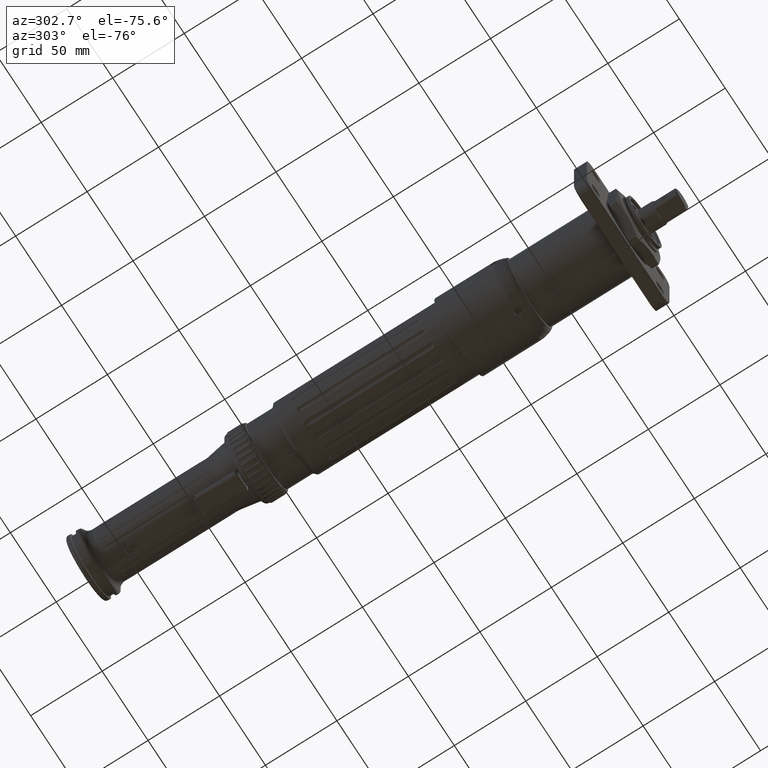
[diagram: clean part render]
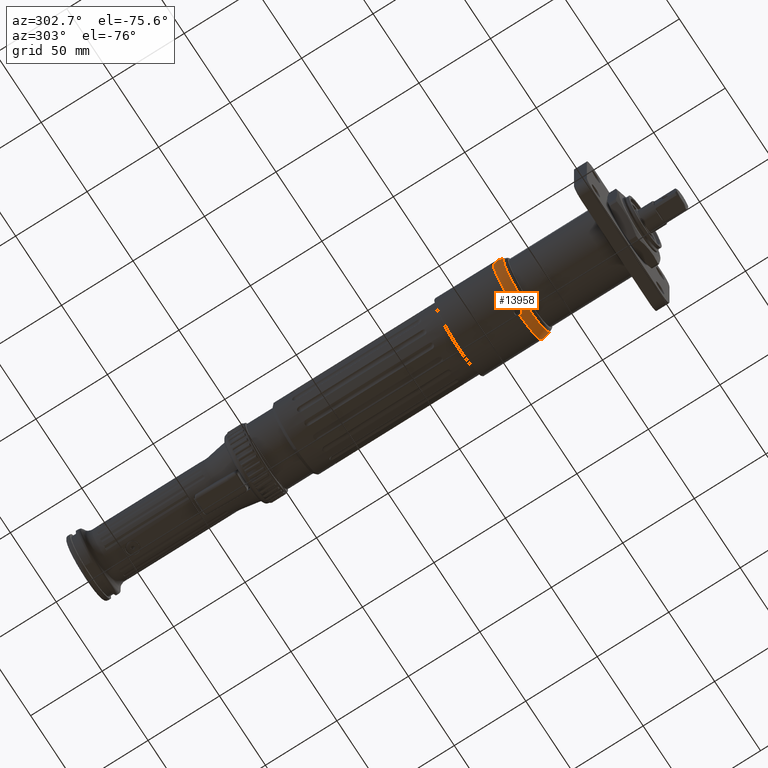
[diagram: same view with one face highlighted and labeled with its STEP entity id]
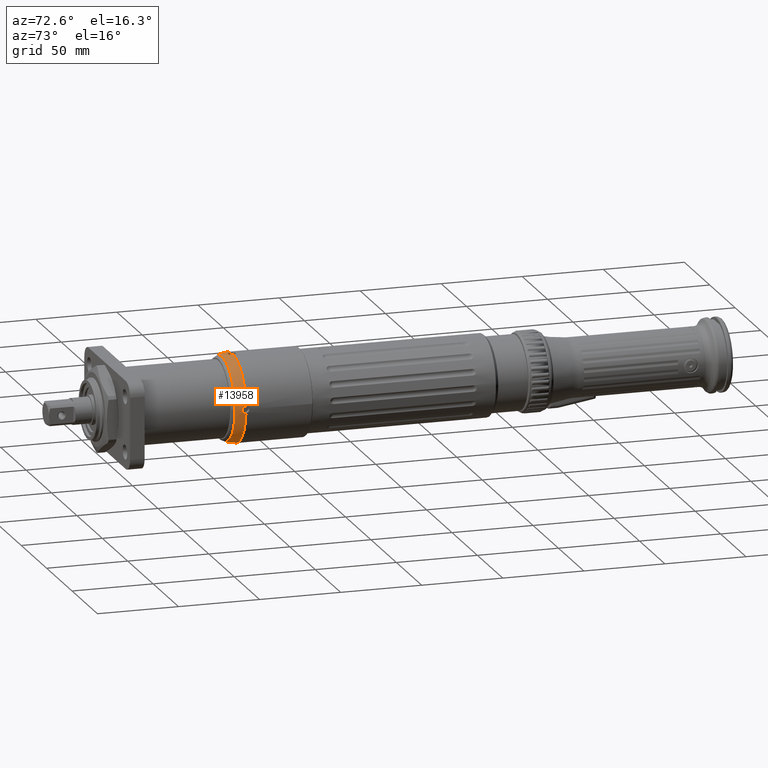
[diagram: same view with one face highlighted and labeled with its STEP entity id]
A machine part, auxiliary view. The second image highlights one B-rep face of the part: STEP entity #13958.
A second angle (auxiliary view) of the same face is appended — the face is thin or edge-on in the first view.
In plain terms, the highlighted face is a freeform B-spline surface patch.
Its self-contained STEP definition (entity closure, byte-faithful):
#13=(
BOUNDED_SURFACE()
B_SPLINE_SURFACE(2,2,((#25899,#25900,#25901,#25902,#25903,#25904,#25905,
#25906,#25907),(#25908,#25909,#25910,#25911,#25912,#25913,#25914,#25915,
#25916),(#25917,#25918,#25919,#25920,#25921,#25922,#25923,#25924,#25925)),
 .UNSPECIFIED.,.F.,.T.,.F.)
B_SPLINE_SURFACE_WITH_KNOTS((3,3),(3,2,2,2,3),(-0.436332312998584,1.12253176373896E-15),
(-3.14159265358979,-1.5707963267949,0.,1.5707963267949,3.14159265358979),
 .UNSPECIFIED.)
GEOMETRIC_REPRESENTATION_ITEM()
RATIONAL_B_SPLINE_SURFACE(((1.,0.707106781186548,1.,0.707106781186548,1.,
0.707106781186548,1.,0.707106781186548,1.),(0.976296007119946,0.690345527079863,
0.976296007119946,0.690345527079863,0.976296007119946,0.690345527079863,
0.976296007119946,0.690345527079863,0.976296007119946),(1.,0.707106781186548,
1.,0.707106781186548,1.,0.707106781186548,1.,0.707106781186548,1.)))
REPRESENTATION_ITEM('')
SURFACE()
);
#1694=(
BOUNDED_CURVE()
B_SPLINE_CURVE(2,(#25927,#25928,#25929),.UNSPECIFIED.,.F.,.F.)
B_SPLINE_CURVE_WITH_KNOTS((3,3),(0.166741521424202,0.436332312998584),
 .UNSPECIFIED.)
CURVE()
GEOMETRIC_REPRESENTATION_ITEM()
RATIONAL_B_SPLINE_CURVE((0.988806508728665,0.98535433197672,1.))
REPRESENTATION_ITEM('')
);
#2829=CIRCLE('',#15746,25.5946168055497);
#2830=CIRCLE('',#15747,25.5946168055497);
#2831=CIRCLE('',#15748,27.);
#2832=CIRCLE('',#15749,27.);
#2833=CIRCLE('',#15750,27.);
#2834=CIRCLE('',#15751,27.);
#4360=FACE_OUTER_BOUND('',#5438,.T.);
#5438=EDGE_LOOP('',(#12202,#12203,#12204,#12205,#12206,#12207,#12208,#12209,
#12210,#12211,#12212,#12213,#12214));
#5519=B_SPLINE_CURVE_WITH_KNOTS('',3,(#22624,#22625,#22626,#22627,#22628,
#22629,#22630,#22631,#22632,#22633,#22634,#22635,#22636,#22637,#22638,#22639,
#22640,#22641,#22642,#22643,#22644,#22645,#22646,#22647),.UNSPECIFIED.,
 .F.,.F.,(4,2,2,2,2,2,2,2,2,2,2,4),(-0.762094773629998,-0.713138349447178,
-0.6632666893365,-0.579993876070031,-0.488369197452834,-0.427920128872396,
-0.380832725063162,-0.333655014169783,-0.272850996636044,-0.181497437758492,
-0.0904148483368831,-3.02151717925526E-6),.UNSPECIFIED.);
#5522=B_SPLINE_CURVE_WITH_KNOTS('',3,(#22674,#22675,#22676,#22677,#22678,
#22679,#22680,#22681,#22682,#22683,#22684,#22685,#22686,#22687,#22688,#22689,
#22690,#22691,#22692,#22693,#22694,#22695,#22696,#22697),.UNSPECIFIED.,
 .F.,.F.,(4,2,2,2,2,2,2,2,2,2,2,4),(-0.762091733407677,-0.713134224124559,
-0.66326451951849,-0.579991737637625,-0.488367033450213,-0.427917917544912,
-0.380830912152885,-0.333653914462036,-0.272851085137253,-0.181497582014372,
-0.0904150257707268,0.),.UNSPECIFIED.);
#5525=B_SPLINE_CURVE_WITH_KNOTS('',3,(#22727,#22728,#22729,#22730,#22731,
#22732,#22733,#22734,#22735,#22736,#22737,#22738,#22739,#22740),
 .UNSPECIFIED.,.F.,.F.,(4,2,2,2,2,2,4),(-0.381180428784287,-0.380832725063223,
-0.333655014169834,-0.272850996636086,-0.181497437758522,-0.0904148483368918,
-3.02151717943682E-6),.UNSPECIFIED.);
#5526=B_SPLINE_CURVE_WITH_KNOTS('',3,(#22741,#22742,#22743,#22744,#22745,
#22746,#22747,#22748,#22749,#22750,#22751,#22752,#22753,#22754),
 .UNSPECIFIED.,.F.,.F.,(4,2,2,2,2,2,4),(-0.762094773630102,-0.713138349447276,
-0.663266689336593,-0.579993876070119,-0.488369197452918,-0.427920128872469,
-0.381180428784287),.UNSPECIFIED.);
#5529=B_SPLINE_CURVE_WITH_KNOTS('',3,(#22781,#22782,#22783,#22784,#22785,
#22786,#22787,#22788,#22789,#22790,#22791,#22792,#22793,#22794,#22795,#22796,
#22797,#22798,#22799,#22800,#22801,#22802,#22803,#22804),.UNSPECIFIED.,
 .F.,.F.,(4,2,2,2,2,2,2,2,2,2,2,4),(-0.762094773630157,-0.713138349447343,
-0.663266689336651,-0.579993876070159,-0.488369197452944,-0.42792012887249,
-0.380832725063245,-0.333655014169856,-0.272850996636103,-0.181497437758526,
-0.0904148483368925,-3.02151717909098E-6),.UNSPECIFIED.);
#6066=VERTEX_POINT('',#22602);
#6067=VERTEX_POINT('',#22613);
#6070=VERTEX_POINT('',#22652);
#6071=VERTEX_POINT('',#22663);
#6075=VERTEX_POINT('',#22704);
#6076=VERTEX_POINT('',#22715);
#6077=VERTEX_POINT('',#22726);
#6080=VERTEX_POINT('',#22759);
#6081=VERTEX_POINT('',#22770);
#6770=VERTEX_POINT('',#25926);
#6771=VERTEX_POINT('',#25930);
#7388=EDGE_CURVE('',#6066,#6067,#5519,.T.);
#7392=EDGE_CURVE('',#6070,#6071,#5522,.T.);
#7397=EDGE_CURVE('',#6077,#6076,#5525,.T.);
#7398=EDGE_CURVE('',#6075,#6077,#5526,.T.);
#7402=EDGE_CURVE('',#6080,#6081,#5529,.T.);
#8586=EDGE_CURVE('',#6077,#6770,#1694,.T.);
#8587=EDGE_CURVE('',#6770,#6771,#2829,.T.);
#8588=EDGE_CURVE('',#6771,#6770,#2830,.T.);
#8589=EDGE_CURVE('',#6076,#6070,#2831,.T.);
#8590=EDGE_CURVE('',#6071,#6080,#2832,.T.);
#8591=EDGE_CURVE('',#6081,#6066,#2833,.T.);
#8592=EDGE_CURVE('',#6067,#6075,#2834,.T.);
#12202=ORIENTED_EDGE('',*,*,#7398,.T.);
#12203=ORIENTED_EDGE('',*,*,#8586,.T.);
#12204=ORIENTED_EDGE('',*,*,#8587,.T.);
#12205=ORIENTED_EDGE('',*,*,#8588,.T.);
#12206=ORIENTED_EDGE('',*,*,#8586,.F.);
#12207=ORIENTED_EDGE('',*,*,#7397,.T.);
#12208=ORIENTED_EDGE('',*,*,#8589,.T.);
#12209=ORIENTED_EDGE('',*,*,#7392,.T.);
#12210=ORIENTED_EDGE('',*,*,#8590,.T.);
#12211=ORIENTED_EDGE('',*,*,#7402,.T.);
#12212=ORIENTED_EDGE('',*,*,#8591,.T.);
#12213=ORIENTED_EDGE('',*,*,#7388,.T.);
#12214=ORIENTED_EDGE('',*,*,#8592,.T.);
#13958=ADVANCED_FACE('',(#4360),#13,.F.);
#15746=AXIS2_PLACEMENT_3D('',#25931,#20033,#20034);
#15747=AXIS2_PLACEMENT_3D('',#25932,#20035,#20036);
#15748=AXIS2_PLACEMENT_3D('',#25933,#20037,#20038);
#15749=AXIS2_PLACEMENT_3D('',#25934,#20039,#20040);
#15750=AXIS2_PLACEMENT_3D('',#25935,#20041,#20042);
#15751=AXIS2_PLACEMENT_3D('',#25936,#20043,#20044);
#20033=DIRECTION('center_axis',(2.4980018054066E-16,1.,-5.39144740531135E-16));
#20034=DIRECTION('ref_axis',(-1.,2.4980018054066E-16,2.91883724430911E-17));
#20035=DIRECTION('center_axis',(2.4980018054066E-16,1.,-5.39144740531135E-16));
#20036=DIRECTION('ref_axis',(-1.,2.4980018054066E-16,2.91883724430911E-17));
#20037=DIRECTION('center_axis',(-2.4980018054066E-16,-1.,5.39144740531135E-16));
#20038=DIRECTION('ref_axis',(-1.,2.4980018054066E-16,-6.26601374929604E-17));
#20039=DIRECTION('center_axis',(-2.4980018054066E-16,-1.,5.39144740531135E-16));
#20040=DIRECTION('ref_axis',(-1.,2.4980018054066E-16,-6.26601374929604E-17));
#20041=DIRECTION('center_axis',(-2.4980018054066E-16,-1.,5.39144740531135E-16));
#20042=DIRECTION('ref_axis',(-1.,2.4980018054066E-16,-6.26601374929604E-17));
#20043=DIRECTION('center_axis',(-2.4980018054066E-16,-1.,5.39144740531135E-16));
#20044=DIRECTION('ref_axis',(-1.,2.4980018054066E-16,-6.26601374929604E-17));
#22602=CARTESIAN_POINT('',(-26.9025064283222,77.186687240918,2.29241093045683));
#22613=CARTESIAN_POINT('',(-26.9025064283222,77.186687240918,-2.29241093045702));
#22624=CARTESIAN_POINT('Ctrl Pts',(-26.9025064283222,77.186687240918,2.29241093045685));
#22625=CARTESIAN_POINT('Ctrl Pts',(-26.9013777839554,77.0240442976474,2.30565609602928));
#22626=CARTESIAN_POINT('Ctrl Pts',(-26.8990497723376,76.860475342746,2.30155388590625));
#22627=CARTESIAN_POINT('Ctrl Pts',(-26.8920419265568,76.5339659535343,2.25841409191136));
#22628=CARTESIAN_POINT('Ctrl Pts',(-26.8873407151843,76.3720767028528,2.21885445752274));
#22629=CARTESIAN_POINT('Ctrl Pts',(-26.8723725879852,75.9550954651668,2.06763926032131));
#22630=CARTESIAN_POINT('Ctrl Pts',(-26.8605826016678,75.7136086783002,1.92667901993648));
#22631=CARTESIAN_POINT('Ctrl Pts',(-26.835184620854,75.2714324521051,1.54762616359992));
#22632=CARTESIAN_POINT('Ctrl Pts',(-26.8218484367768,75.081552580322,1.30488562652988));
#22633=CARTESIAN_POINT('Ctrl Pts',(-26.8048839171176,74.854214847736,0.852149321588493));
#22634=CARTESIAN_POINT('Ctrl Pts',(-26.7995754215638,74.7878555502103,0.661063483598158));
#22635=CARTESIAN_POINT('Ctrl Pts',(-26.7937381857281,74.7155938314818,0.310026426636901));
#22636=CARTESIAN_POINT('Ctrl Pts',(-26.792424261767,74.6997653627012,0.153476990870861));
#22637=CARTESIAN_POINT('Ctrl Pts',(-26.7924633341073,74.7002403482843,-0.160731763102984));
#22638=CARTESIAN_POINT('Ctrl Pts',(-26.7938213726262,74.7166041818897,-0.3175307975769));
#22639=CARTESIAN_POINT('Ctrl Pts',(-26.7997762526751,74.7903679349474,-0.669769983208885));
#22640=CARTESIAN_POINT('Ctrl Pts',(-26.8051748731519,74.8579231943116,-0.861705428662271));
#22641=CARTESIAN_POINT('Ctrl Pts',(-26.8222790331707,75.0876231303149,-1.31355605206378));
#22642=CARTESIAN_POINT('Ctrl Pts',(-26.8356069541002,75.2779835183924,-1.55473529066452));
#22643=CARTESIAN_POINT('Ctrl Pts',(-26.8620920808345,75.7407110666912,-1.94838029937706));
#22644=CARTESIAN_POINT('Ctrl Pts',(-26.8748918881071,76.0083957632976,-2.09733253068768));
#22645=CARTESIAN_POINT('Ctrl Pts',(-26.8941538353562,76.584154870989,-2.28206140880767));
#22646=CARTESIAN_POINT('Ctrl Pts',(-26.9004220341928,76.8863162772107,-2.31687226316198));
#22647=CARTESIAN_POINT('Ctrl Pts',(-26.9025064283222,77.186687240918,-2.29241093045702));
#22652=CARTESIAN_POINT('',(26.9025064283224,77.186687240918,-2.29241093045702));
#22663=CARTESIAN_POINT('',(26.9025064283224,77.186687240918,2.29241093045684));
#22674=CARTESIAN_POINT('Ctrl Pts',(26.9025064283224,77.186687240918,-2.29241093045703));
#22675=CARTESIAN_POINT('Ctrl Pts',(26.9013777585324,77.0240406340514,-2.305656394382));
#22676=CARTESIAN_POINT('Ctrl Pts',(26.8990496671776,76.8604680146663,-2.30155369791135));
#22677=CARTESIAN_POINT('Ctrl Pts',(26.8920417823349,76.5339617078177,-2.25841273613796));
#22678=CARTESIAN_POINT('Ctrl Pts',(26.8873407548645,76.3720788615636,-2.21885458072959));
#22679=CARTESIAN_POINT('Ctrl Pts',(26.8723729316174,75.9551032793033,-2.06764319547698));
#22680=CARTESIAN_POINT('Ctrl Pts',(26.8605829816715,75.7136160487318,-1.92668392594167));
#22681=CARTESIAN_POINT('Ctrl Pts',(26.8351850085325,75.271438371277,-1.54763279162175));
#22682=CARTESIAN_POINT('Ctrl Pts',(26.8218487889557,75.0815575210086,-1.30489290974762));
#22683=CARTESIAN_POINT('Ctrl Pts',(26.8048841617283,74.8542179797656,-0.852157245193125));
#22684=CARTESIAN_POINT('Ctrl Pts',(26.7995756118263,74.7878579315157,-0.661071499986863));
#22685=CARTESIAN_POINT('Ctrl Pts',(26.7937382980172,74.7155952013319,-0.310035847612678));
#22686=CARTESIAN_POINT('Ctrl Pts',(26.7924243286245,74.6997661754588,-0.153487813546507));
#22687=CARTESIAN_POINT('Ctrl Pts',(26.7924632639729,74.7002394956877,0.160717237567943));
#22688=CARTESIAN_POINT('Ctrl Pts',(26.7938211932989,74.7166020098988,0.317514001943315));
#22689=CARTESIAN_POINT('Ctrl Pts',(26.7997757395623,74.7903615153542,0.669747606481686));
#22690=CARTESIAN_POINT('Ctrl Pts',(26.8051740994761,74.8579133435636,0.861680011384135));
#22691=CARTESIAN_POINT('Ctrl Pts',(26.8222777659755,75.0876053023479,1.31353005502524));
#22692=CARTESIAN_POINT('Ctrl Pts',(26.8356055688229,75.2779622880965,1.5547117392408));
#22693=CARTESIAN_POINT('Ctrl Pts',(26.8620907125366,75.7406841977796,1.94836291567093));
#22694=CARTESIAN_POINT('Ctrl Pts',(26.8748906535237,76.0083667337705,2.09731878839219));
#22695=CARTESIAN_POINT('Ctrl Pts',(26.8941533752498,76.5841333030416,2.28205888428543));
#22696=CARTESIAN_POINT('Ctrl Pts',(26.9004219590571,76.8863054497889,2.31687314491536));
#22697=CARTESIAN_POINT('Ctrl Pts',(26.9025064283224,77.186687240918,2.29241093045684));
#22704=CARTESIAN_POINT('',(-2.29241093045687,77.1866872409179,-26.9025064283224));
#22715=CARTESIAN_POINT('',(2.292410930457,77.1866872409179,-26.9025064283224));
#22726=CARTESIAN_POINT('',(7.3565157469349E-14,74.7,-26.7924435630446));
#22727=CARTESIAN_POINT('Ctrl Pts',(7.44861722115247E-14,74.7,-26.7924435630446));
#22728=CARTESIAN_POINT('Ctrl Pts',(0.00115893672150162,74.7,-26.7924435630446));
#22729=CARTESIAN_POINT('Ctrl Pts',(0.00231789647579632,74.700000875953,
-26.7924436351003));
#22730=CARTESIAN_POINT('Ctrl Pts',(0.160731763102959,74.7002403482843,-26.7924633341074));
#22731=CARTESIAN_POINT('Ctrl Pts',(0.317530797576869,74.7166041818896,-26.7938213726264));
#22732=CARTESIAN_POINT('Ctrl Pts',(0.669769983208861,74.7903679349473,-26.7997762526752));
#22733=CARTESIAN_POINT('Ctrl Pts',(0.861705428662244,74.8579231943116,-26.8051748731521));
#22734=CARTESIAN_POINT('Ctrl Pts',(1.31355605206377,75.0876231303149,-26.8222790331709));
#22735=CARTESIAN_POINT('Ctrl Pts',(1.55473529066451,75.2779835183924,-26.8356069541004));
#22736=CARTESIAN_POINT('Ctrl Pts',(1.94838029937706,75.7407110666912,-26.8620920808347));
#22737=CARTESIAN_POINT('Ctrl Pts',(2.09733253068765,76.0083957632976,-26.8748918881073));
#22738=CARTESIAN_POINT('Ctrl Pts',(2.28206140880762,76.5841548709889,-26.8941538353563));
#22739=CARTESIAN_POINT('Ctrl Pts',(2.31687226316196,76.8863162772106,-26.9004220341929));
#22740=CARTESIAN_POINT('Ctrl Pts',(2.292410930457,77.1866872409179,-26.9025064283224));
#22741=CARTESIAN_POINT('Ctrl Pts',(-2.29241093045687,77.1866872409179,-26.9025064283224));
#22742=CARTESIAN_POINT('Ctrl Pts',(-2.3056560960293,77.0240442976474,-26.9013777839555));
#22743=CARTESIAN_POINT('Ctrl Pts',(-2.30155388590627,76.860475342746,-26.8990497723378));
#22744=CARTESIAN_POINT('Ctrl Pts',(-2.25841409191138,76.5339659535343,-26.8920419265569));
#22745=CARTESIAN_POINT('Ctrl Pts',(-2.21885445752276,76.3720767028527,-26.8873407151845));
#22746=CARTESIAN_POINT('Ctrl Pts',(-2.06763926032132,75.9550954651668,-26.8723725879854));
#22747=CARTESIAN_POINT('Ctrl Pts',(-1.92667901993647,75.7136086783001,-26.8605826016679));
#22748=CARTESIAN_POINT('Ctrl Pts',(-1.54762616359995,75.2714324521051,-26.8351846208542));
#22749=CARTESIAN_POINT('Ctrl Pts',(-1.30488562652991,75.081552580322,-26.8218484367769));
#22750=CARTESIAN_POINT('Ctrl Pts',(-0.852149321588476,74.854214847736,-26.8048839171177));
#22751=CARTESIAN_POINT('Ctrl Pts',(-0.661063483598154,74.7878555502103,
-26.799575421564));
#22752=CARTESIAN_POINT('Ctrl Pts',(-0.311161454485839,74.7158274793589,
-26.7937570595911));
#22753=CARTESIAN_POINT('Ctrl Pts',(-0.155788826805794,74.7,-26.7924435630446));
#22754=CARTESIAN_POINT('Ctrl Pts',(7.45237205279636E-14,74.7,-26.7924435630446));
#22759=CARTESIAN_POINT('',(2.29241093045701,77.186687240918,26.9025064283222));
#22770=CARTESIAN_POINT('',(-2.29241093045686,77.186687240918,26.9025064283222));
#22781=CARTESIAN_POINT('Ctrl Pts',(2.29241093045701,77.186687240918,26.9025064283222));
#22782=CARTESIAN_POINT('Ctrl Pts',(2.30565609602944,77.0240442976474,26.9013777839554));
#22783=CARTESIAN_POINT('Ctrl Pts',(2.3015538859064,76.8604753427459,26.8990497723376));
#22784=CARTESIAN_POINT('Ctrl Pts',(2.25841409191152,76.5339659535343,26.8920419265567));
#22785=CARTESIAN_POINT('Ctrl Pts',(2.2188544575229,76.3720767028528,26.8873407151843));
#22786=CARTESIAN_POINT('Ctrl Pts',(2.06763926032147,75.9550954651669,26.8723725879852));
#22787=CARTESIAN_POINT('Ctrl Pts',(1.92667901993665,75.7136086783002,26.8605826016677));
#22788=CARTESIAN_POINT('Ctrl Pts',(1.54762616360008,75.2714324521051,26.835184620854));
#22789=CARTESIAN_POINT('Ctrl Pts',(1.30488562653004,75.081552580322,26.8218484367768));
#22790=CARTESIAN_POINT('Ctrl Pts',(0.852149321588649,74.854214847736,26.8048839171175));
#22791=CARTESIAN_POINT('Ctrl Pts',(0.661063483598315,74.7878555502103,26.7995754215638));
#22792=CARTESIAN_POINT('Ctrl Pts',(0.310026426637065,74.7155938314818,26.7937381857281));
#22793=CARTESIAN_POINT('Ctrl Pts',(0.153476990871024,74.6997653627012,26.792424261767));
#22794=CARTESIAN_POINT('Ctrl Pts',(-0.160731763102819,74.7002403482843,
26.7924633341072));
#22795=CARTESIAN_POINT('Ctrl Pts',(-0.317530797576731,74.7166041818897,
26.7938213726262));
#22796=CARTESIAN_POINT('Ctrl Pts',(-0.669769983208726,74.7903679349474,
26.799776252675));
#22797=CARTESIAN_POINT('Ctrl Pts',(-0.861705428662117,74.8579231943117,
26.8051748731519));
#22798=CARTESIAN_POINT('Ctrl Pts',(-1.31355605206361,75.0876231303149,26.8222790331707));
#22799=CARTESIAN_POINT('Ctrl Pts',(-1.55473529066435,75.2779835183924,26.8356069541002));
#22800=CARTESIAN_POINT('Ctrl Pts',(-1.94838029937692,75.7407110666912,26.8620920808345));
#22801=CARTESIAN_POINT('Ctrl Pts',(-2.09733253068751,76.0083957632976,26.8748918881071));
#22802=CARTESIAN_POINT('Ctrl Pts',(-2.28206140880748,76.584154870989,26.8941538353562));
#22803=CARTESIAN_POINT('Ctrl Pts',(-2.31687226316182,76.8863162772107,26.9004220341927));
#22804=CARTESIAN_POINT('Ctrl Pts',(-2.29241093045686,77.186687240918,26.9025064283222));
#25899=CARTESIAN_POINT('Ctrl Pts',(7.16772017766519E-14,70.8474133148074,
-25.5946168055498));
#25900=CARTESIAN_POINT('Ctrl Pts',(-25.5946168055497,70.8474133148074,-25.5946168055498));
#25901=CARTESIAN_POINT('Ctrl Pts',(-25.5946168055497,70.8474133148075,-8.90003540328475E-14));
#25902=CARTESIAN_POINT('Ctrl Pts',(-25.5946168055497,70.8474133148075,25.5946168055496));
#25903=CARTESIAN_POINT('Ctrl Pts',(7.16041139150531E-14,70.8474133148075,
25.5946168055496));
#25904=CARTESIAN_POINT('Ctrl Pts',(25.5946168055498,70.8474133148074,25.5946168055496));
#25905=CARTESIAN_POINT('Ctrl Pts',(25.5946168055498,70.8474133148074,-8.89272661712487E-14));
#25906=CARTESIAN_POINT('Ctrl Pts',(25.5946168055498,70.8474133148074,-25.5946168055498));
#25907=CARTESIAN_POINT('Ctrl Pts',(7.16772017766519E-14,70.8474133148074,
-25.5946168055498));
#25908=CARTESIAN_POINT('Ctrl Pts',(7.2432069649256E-14,73.8612673012738,
-27.0000000000001));
#25909=CARTESIAN_POINT('Ctrl Pts',(-26.9999999999999,73.8612673012738,-27.0000000000001));
#25910=CARTESIAN_POINT('Ctrl Pts',(-26.9999999999999,73.8612673012739,-9.06272641610412E-14));
#25911=CARTESIAN_POINT('Ctrl Pts',(-26.9999999999999,73.8612673012739,26.9999999999999));
#25912=CARTESIAN_POINT('Ctrl Pts',(7.2354968582334E-14,73.8612673012739,
26.9999999999999));
#25913=CARTESIAN_POINT('Ctrl Pts',(27.0000000000001,73.8612673012739,26.9999999999999));
#25914=CARTESIAN_POINT('Ctrl Pts',(27.0000000000001,73.8612673012738,-9.05501630941192E-14));
#25915=CARTESIAN_POINT('Ctrl Pts',(27.0000000000001,73.8612673012738,-27.0000000000001));
#25916=CARTESIAN_POINT('Ctrl Pts',(7.2432069649256E-14,73.8612673012738,
-27.0000000000001));
#25917=CARTESIAN_POINT('Ctrl Pts',(7.32627601505526E-14,77.186687240918,
-27.0000000000001));
#25918=CARTESIAN_POINT('Ctrl Pts',(-26.9999999999999,77.186687240918,-27.0000000000001));
#25919=CARTESIAN_POINT('Ctrl Pts',(-26.9999999999999,77.186687240918,-9.24201468315577E-14));
#25920=CARTESIAN_POINT('Ctrl Pts',(-26.9999999999999,77.186687240918,26.9999999999999));
#25921=CARTESIAN_POINT('Ctrl Pts',(7.31856590836306E-14,77.186687240918,
26.9999999999999));
#25922=CARTESIAN_POINT('Ctrl Pts',(27.0000000000001,77.186687240918,26.9999999999999));
#25923=CARTESIAN_POINT('Ctrl Pts',(27.0000000000001,77.186687240918,-9.23430457646357E-14));
#25924=CARTESIAN_POINT('Ctrl Pts',(27.0000000000001,77.1866872409179,-27.0000000000001));
#25925=CARTESIAN_POINT('Ctrl Pts',(7.32627601505526E-14,77.186687240918,
-27.0000000000001));
#25926=CARTESIAN_POINT('',(7.16772017766519E-14,70.8474133148074,-25.5946168055498));
#25927=CARTESIAN_POINT('Ctrl Pts',(7.3565157469349E-14,74.7,-26.7924435630446));
#25928=CARTESIAN_POINT('Ctrl Pts',(7.30631828512488E-14,72.6924243520651,
-26.4549595816036));
#25929=CARTESIAN_POINT('Ctrl Pts',(7.16772017766519E-14,70.8474133148074,
-25.5946168055498));
#25930=CARTESIAN_POINT('',(25.5946168055498,70.8474133148074,-9.04944844485646E-14));
#25931=CARTESIAN_POINT('Origin',(7.16406578458525E-14,70.8474133148074,
-8.66129826860741E-14));
#25932=CARTESIAN_POINT('Origin',(7.16406578458525E-14,70.8474133148074,
-8.66129826860741E-14));
#25933=CARTESIAN_POINT('Origin',(7.32242096170916E-14,77.186687240918,-9.23815962980967E-14));
#25934=CARTESIAN_POINT('Origin',(7.32242096170916E-14,77.186687240918,-9.23815962980967E-14));
#25935=CARTESIAN_POINT('Origin',(7.32242096170916E-14,77.186687240918,-9.23815962980967E-14));
#25936=CARTESIAN_POINT('Origin',(7.32242096170916E-14,77.186687240918,-9.23815962980967E-14));